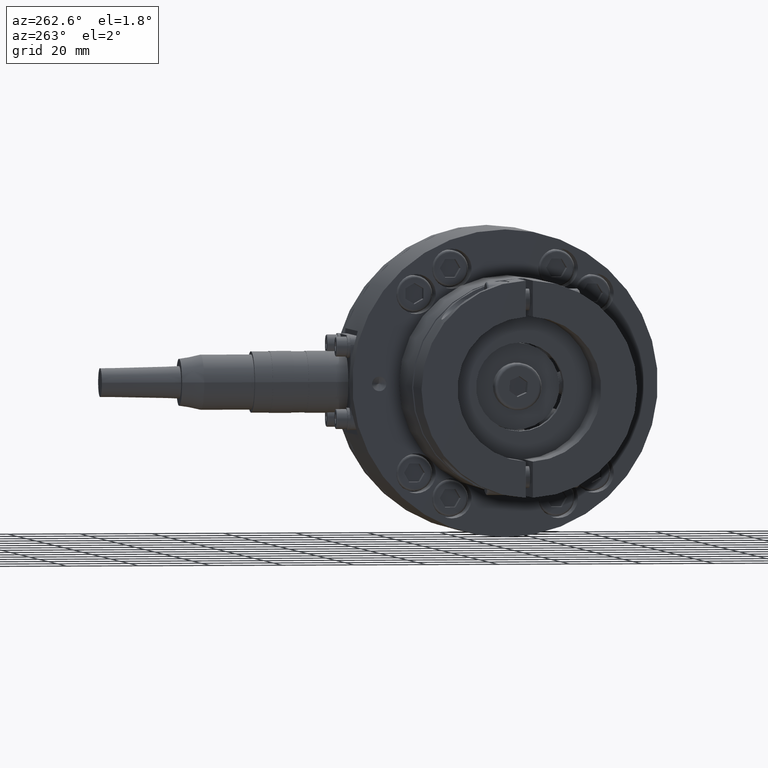
[diagram: clean part render]
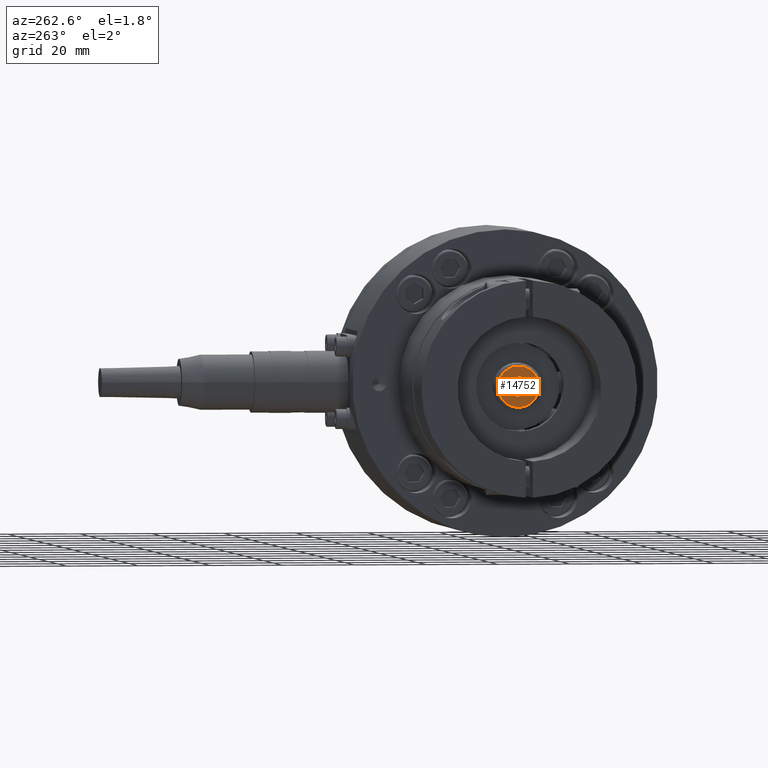
[diagram: same view with one face highlighted and labeled with its STEP entity id]
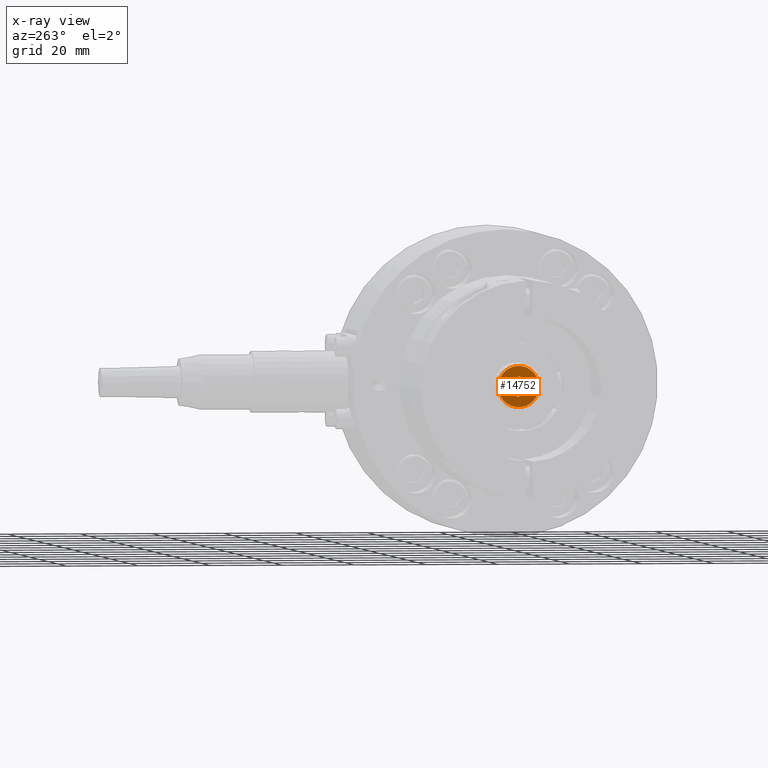
[diagram: x-ray of the same camera — body ghosted, the highlighted face saturated]
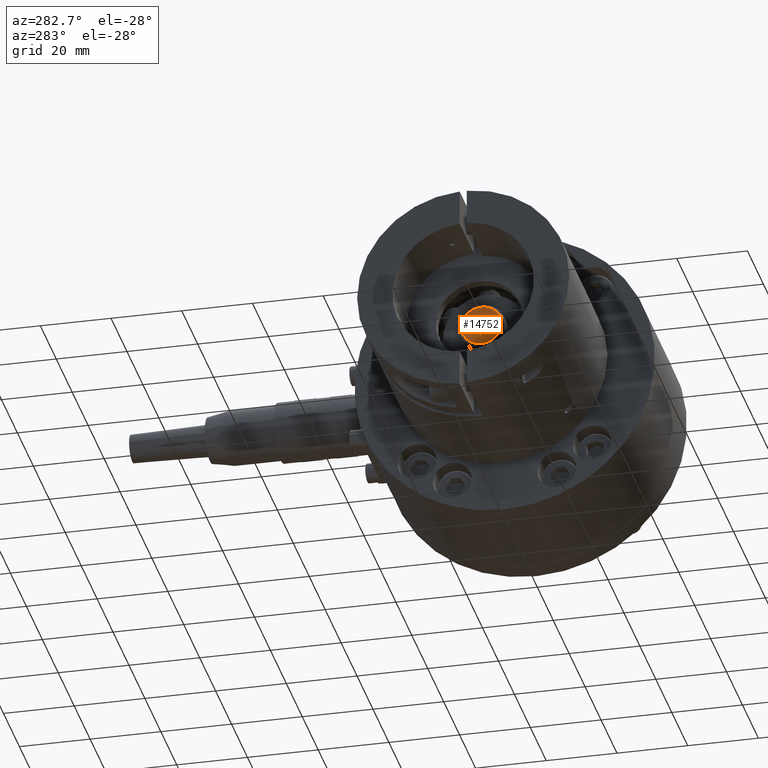
[diagram: same view with one face highlighted and labeled with its STEP entity id]
A machine part, auxiliary view. The second image highlights one B-rep face of the part: STEP entity #14752.
The next image is the same camera in x-ray: the body ghosted, the highlighted face saturated — about 0% of this face is hidden behind the body in this view.
A second angle (auxiliary view) of the same face is appended — the face is thin or edge-on in the first view.
In plain terms, the highlighted planar face has unit normal (-1, 0, 0).
Its self-contained STEP definition (entity closure, byte-faithful):
#419 = CARTESIAN_POINT ( 'NONE',  ( 0.000000000000000000, 0.000000000000000000, 0.000000000000000000 ) ) ;
#962 = VERTEX_POINT ( 'NONE', #10765 ) ;
#1155 = LINE ( 'NONE', #13173, #12171 ) ;
#1293 = VECTOR ( 'NONE', #13157, 1000.000000000000000 ) ;
#1410 = ORIENTED_EDGE ( 'NONE', *, *, #19426, .F. ) ;
#1534 = LINE ( 'NONE', #2725, #1293 ) ;
#2423 = VERTEX_POINT ( 'NONE', #18324 ) ;
#2638 = ORIENTED_EDGE ( 'NONE', *, *, #7264, .F. ) ;
#2725 = CARTESIAN_POINT ( 'NONE',  ( 0.000000000000000000, 1.443375672974067214, 2.499999999999998224 ) ) ;
#3306 = CARTESIAN_POINT ( 'NONE',  ( -0.000000000000000000, -2.886751345948128655, 5.854691731421723944E-15 ) ) ;
#3836 = VERTEX_POINT ( 'NONE', #15126 ) ;
#4092 = VERTEX_POINT ( 'NONE', #3306 ) ;
#4336 = DIRECTION ( 'NONE',  ( 0.000000000000000000, 1.000000000000000000, -1.352083138863442832E-15 ) ) ;
#5212 = CARTESIAN_POINT ( 'NONE',  ( 0.000000000000000000, 2.886751345948129099, -3.903127820947815962E-15 ) ) ;
#5607 = PLANE ( 'NONE',  #12470 ) ;
#5731 = DIRECTION ( 'NONE',  ( -0.000000000000000000, 0.000000000000000000, 1.000000000000000000 ) ) ;
#6561 = VERTEX_POINT ( 'NONE', #14859 ) ;
#7175 = EDGE_LOOP ( 'NONE', ( #13937, #10307 ) ) ;
#7264 = EDGE_CURVE ( 'NONE', #6561, #3836, #1155, .T. ) ;
#7463 = ORIENTED_EDGE ( 'NONE', *, *, #10405, .F. ) ;
#7464 = CARTESIAN_POINT ( 'NONE',  ( 0.000000000000000000, 1.443375672974062107, -2.500000000000001332 ) ) ;
#7539 = VERTEX_POINT ( 'NONE', #14013 ) ;
#7630 = CIRCLE ( 'NONE', #12270, 5.699999999999999289 ) ;
#7710 = ORIENTED_EDGE ( 'NONE', *, *, #16878, .F. ) ;
#7884 = DIRECTION ( 'NONE',  ( -0.000000000000000000, -0.4999999999999989453, 0.8660254037844393737 ) ) ;
#8542 = LINE ( 'NONE', #12456, #16719 ) ;
#8682 = CIRCLE ( 'NONE', #18572, 5.699999999999999289 ) ;
#8768 = CARTESIAN_POINT ( 'NONE',  ( 0.000000000000000000, 0.000000000000000000, 5.699999999999999289 ) ) ;
#9351 = DIRECTION ( 'NONE',  ( -1.000000000000000000, -0.000000000000000000, -0.000000000000000000 ) ) ;
#9649 = EDGE_CURVE ( 'NONE', #7539, #14257, #8682, .T. ) ;
#9739 = DIRECTION ( 'NONE',  ( 0.000000000000000000, -0.5000000000000009992, -0.8660254037844380415 ) ) ;
#9975 = FACE_OUTER_BOUND ( 'NONE', #7175, .T. ) ;
#10307 = ORIENTED_EDGE ( 'NONE', *, *, #9649, .T. ) ;
#10405 = EDGE_CURVE ( 'NONE', #13691, #2423, #15909, .T. ) ;
#10530 = DIRECTION ( 'NONE',  ( -1.000000000000000000, -0.000000000000000000, -0.000000000000000000 ) ) ;
#10688 = VECTOR ( 'NONE', #9739, 1000.000000000000000 ) ;
#10765 = CARTESIAN_POINT ( 'NONE',  ( 0.000000000000000000, 2.886751345948129099, -4.119968255444916849E-15 ) ) ;
#10841 = CARTESIAN_POINT ( 'NONE',  ( 0.000000000000000000, 1.443375672974062107, -2.500000000000001332 ) ) ;
#10881 = CARTESIAN_POINT ( 'NONE',  ( 0.000000000000000000, -1.443375672974066770, -2.499999999999997335 ) ) ;
#12171 = VECTOR ( 'NONE', #4336, 1000.000000000000000 ) ;
#12270 = AXIS2_PLACEMENT_3D ( 'NONE', #13536, #10530, #15060 ) ;
#12456 = CARTESIAN_POINT ( 'NONE',  ( -0.000000000000000000, -2.886751345948128655, 5.854691731421723944E-15 ) ) ;
#12470 = AXIS2_PLACEMENT_3D ( 'NONE', #14516, #17524, #5731 ) ;
#13157 = DIRECTION ( 'NONE',  ( 0.000000000000000000, 0.4999999999999989453, -0.8660254037844392627 ) ) ;
#13173 = CARTESIAN_POINT ( 'NONE',  ( 0.000000000000000000, -1.443375672974062551, 2.500000000000002220 ) ) ;
#13536 = CARTESIAN_POINT ( 'NONE',  ( 0.000000000000000000, 0.000000000000000000, 0.000000000000000000 ) ) ;
#13691 = VERTEX_POINT ( 'NONE', #7464 ) ;
#13934 = DIRECTION ( 'NONE',  ( 0.000000000000000000, 0.000000000000000000, 1.000000000000000000 ) ) ;
#13937 = ORIENTED_EDGE ( 'NONE', *, *, #18121, .T. ) ;
#14013 = CARTESIAN_POINT ( 'NONE',  ( 0.000000000000000000, 7.470345474798854293E-16, -5.699999999999999289 ) ) ;
#14164 = DIRECTION ( 'NONE',  ( 0.000000000000000000, 0.5000000000000009992, 0.8660254037844380415 ) ) ;
#14257 = VERTEX_POINT ( 'NONE', #8768 ) ;
#14516 = CARTESIAN_POINT ( 'NONE',  ( 0.000000000000000000, 0.000000000000000000, 0.000000000000000000 ) ) ;
#14555 = ORIENTED_EDGE ( 'NONE', *, *, #18878, .F. ) ;
#14693 = FACE_BOUND ( 'NONE', #19133, .T. ) ;
#14752 = ADVANCED_FACE ( 'NONE', ( #14693, #9975 ), #5607, .T. ) ;
#14859 = CARTESIAN_POINT ( 'NONE',  ( 0.000000000000000000, -1.443375672974062551, 2.500000000000002220 ) ) ;
#15060 = DIRECTION ( 'NONE',  ( 0.000000000000000000, 0.000000000000000000, 1.000000000000000000 ) ) ;
#15126 = CARTESIAN_POINT ( 'NONE',  ( 0.000000000000000000, 1.443375672974067214, 2.499999999999998224 ) ) ;
#15630 = LINE ( 'NONE', #10881, #18647 ) ;
#15662 = VECTOR ( 'NONE', #16854, 1000.000000000000000 ) ;
#15909 = LINE ( 'NONE', #10841, #15662 ) ;
#16308 = LINE ( 'NONE', #5212, #10688 ) ;
#16341 = ORIENTED_EDGE ( 'NONE', *, *, #17199, .F. ) ;
#16719 = VECTOR ( 'NONE', #14164, 1000.000000000000000 ) ;
#16854 = DIRECTION ( 'NONE',  ( 0.000000000000000000, -1.000000000000000000, 1.352083138863443621E-15 ) ) ;
#16878 = EDGE_CURVE ( 'NONE', #962, #13691, #16308, .T. ) ;
#17199 = EDGE_CURVE ( 'NONE', #3836, #962, #1534, .T. ) ;
#17524 = DIRECTION ( 'NONE',  ( -1.000000000000000000, 0.000000000000000000, -0.000000000000000000 ) ) ;
#18121 = EDGE_CURVE ( 'NONE', #14257, #7539, #7630, .T. ) ;
#18324 = CARTESIAN_POINT ( 'NONE',  ( 0.000000000000000000, -1.443375672974066770, -2.499999999999997335 ) ) ;
#18572 = AXIS2_PLACEMENT_3D ( 'NONE', #419, #9351, #13934 ) ;
#18647 = VECTOR ( 'NONE', #7884, 999.9999999999998863 ) ;
#18878 = EDGE_CURVE ( 'NONE', #4092, #6561, #8542, .T. ) ;
#19133 = EDGE_LOOP ( 'NONE', ( #16341, #2638, #14555, #1410, #7463, #7710 ) ) ;
#19426 = EDGE_CURVE ( 'NONE', #2423, #4092, #15630, .T. ) ;